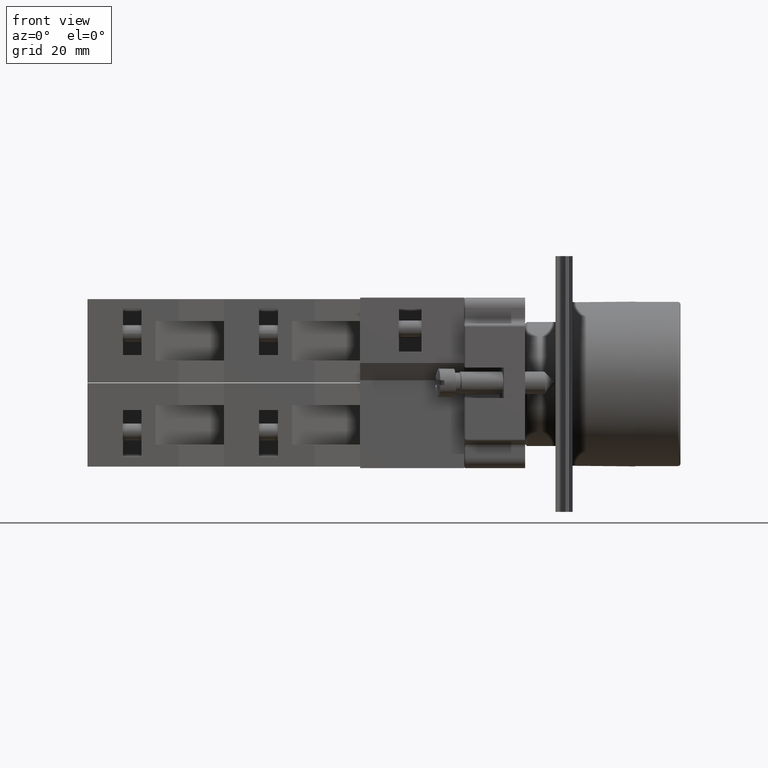
[diagram: clean part render]
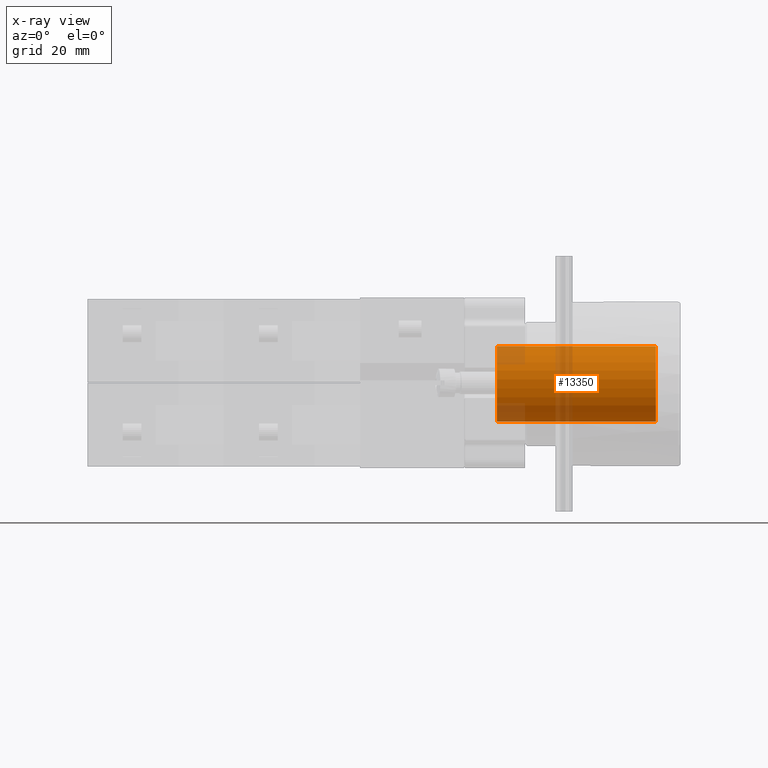
[diagram: x-ray — body ghosted, one internal face saturated and labeled with its STEP entity id]
A machine part, front view, then the same camera in x-ray: the body is ghosted and one INTERNAL B-rep face — a face not visible from any outside direction — is saturated and labeled: STEP entity #13350.
In plain terms, the highlighted cylindrical surface (bore or boss wall) has radius 6.65 mm, axis along (1, -0, 0).
Its self-contained STEP definition (entity closure, byte-faithful):
#13323=CARTESIAN_POINT('',(-12.120895354876740,-0.031685679495355,0.0));
#13324=DIRECTION('',(1.0,9.881728E-017,0.0));
#13325=DIRECTION('',(0.0,0.0,-1.0));
#13326=AXIS2_PLACEMENT_3D('',#13323,#13324,#13325);
#13327=CYLINDRICAL_SURFACE('',#13326,6.650000000000000);
#13328=CARTESIAN_POINT('',(15.879104645123263,-0.031685679495352,6.650000000000000));
#13329=VERTEX_POINT('',#13328);
#13330=CARTESIAN_POINT('',(15.879104645123263,-0.031685679495353,0.0));
#13331=DIRECTION('',(-1.0,0.0,0.0));
#13332=DIRECTION('',(0.0,0.0,-1.0));
#13333=AXIS2_PLACEMENT_3D('',#13330,#13331,#13332);
#13334=CIRCLE('',#13333,6.650000000000000);
#13335=EDGE_CURVE('',#13329,#13329,#13334,.T.);
#13336=ORIENTED_EDGE('',*,*,#13335,.F.);
#13337=EDGE_LOOP('',(#13336));
#13338=FACE_OUTER_BOUND('',#13337,.T.);
#13339=CARTESIAN_POINT('',(-12.120895354876740,-0.031685679495355,6.650000000000000));
#13340=VERTEX_POINT('',#13339);
#13341=CARTESIAN_POINT('',(-12.120895354876740,-0.031685679495355,0.0));
#13342=DIRECTION('',(1.0,0.0,0.0));
#13343=DIRECTION('',(0.0,0.0,-1.0));
#13344=AXIS2_PLACEMENT_3D('',#13341,#13342,#13343);
#13345=CIRCLE('',#13344,6.650000000000000);
#13346=EDGE_CURVE('',#13340,#13340,#13345,.T.);
#13347=ORIENTED_EDGE('',*,*,#13346,.F.);
#13348=EDGE_LOOP('',(#13347));
#13349=FACE_BOUND('',#13348,.T.);
#13350=ADVANCED_FACE('',(#13338,#13349),#13327,.F.);